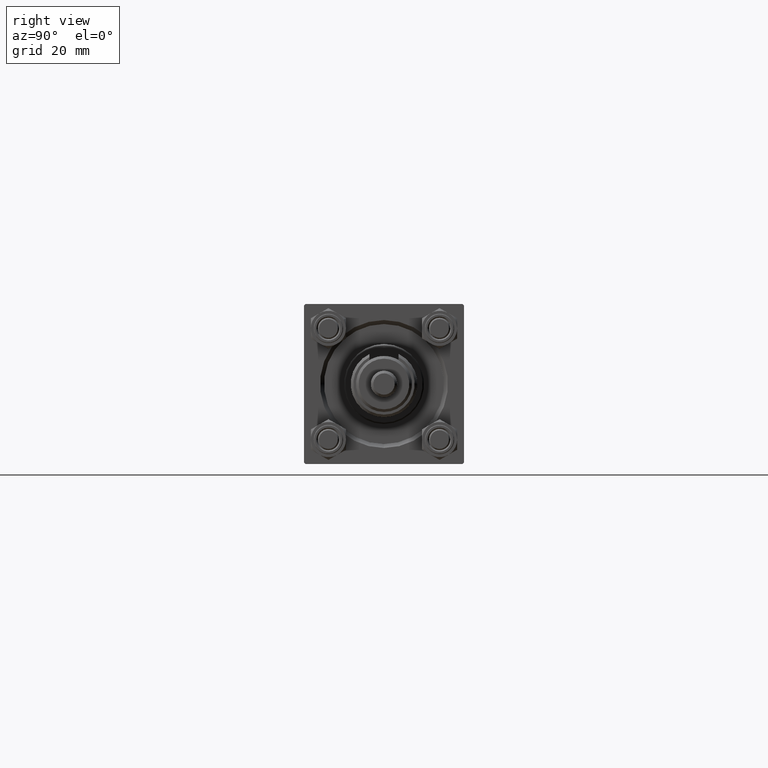
[diagram: clean part render]
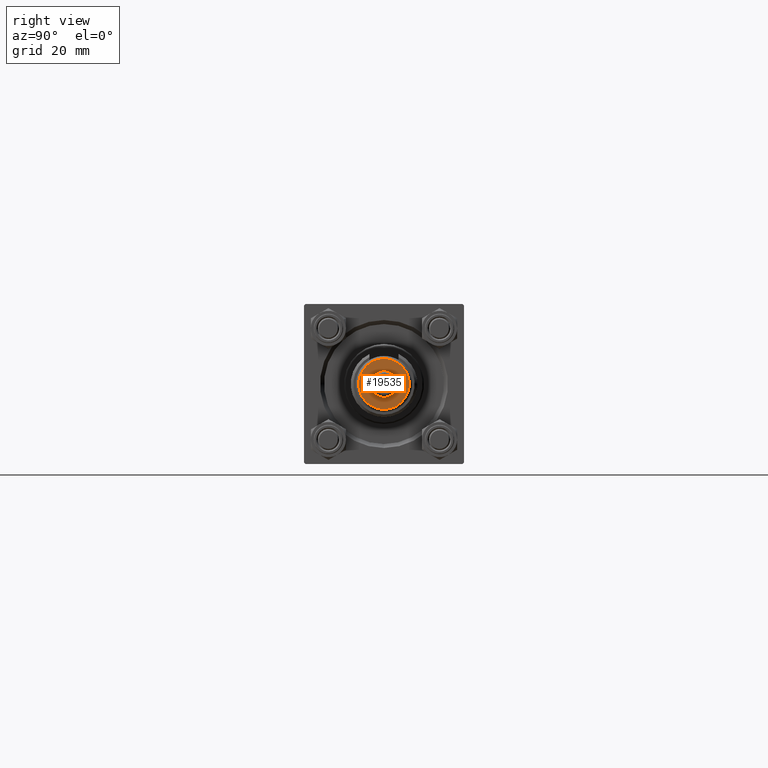
[diagram: same view with one face highlighted and labeled with its STEP entity id]
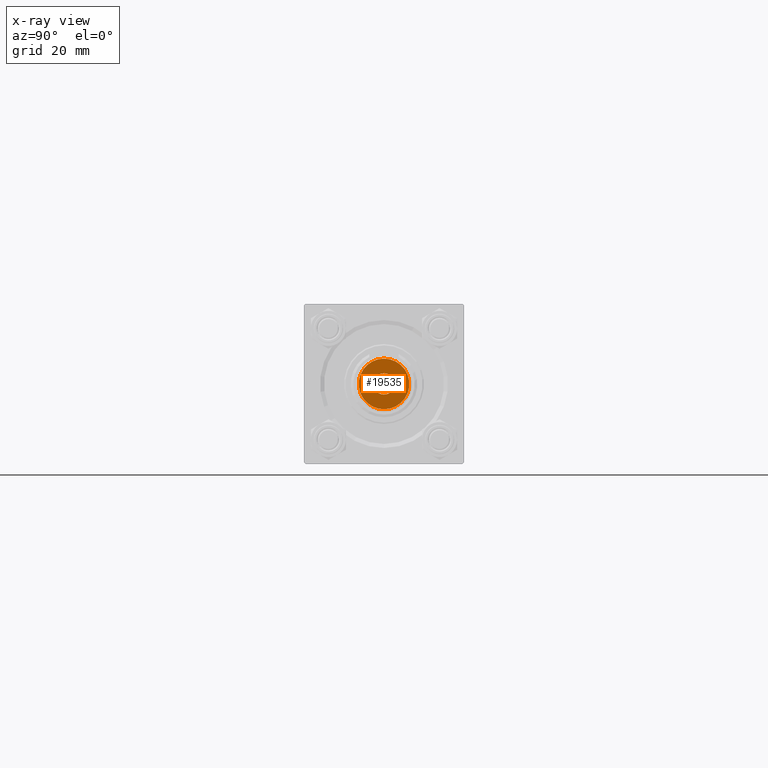
[diagram: x-ray of the same camera — body ghosted, the highlighted face saturated]
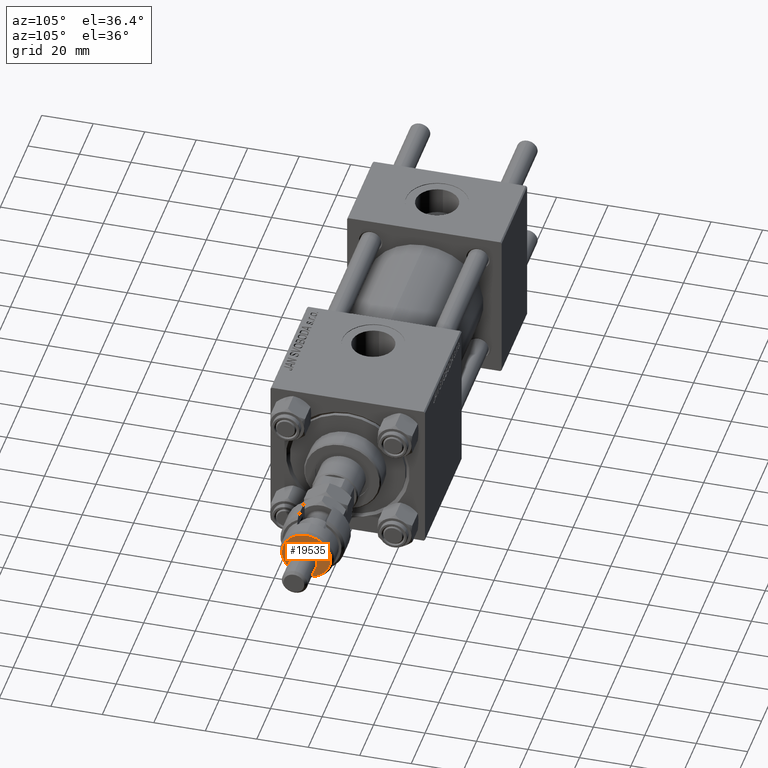
[diagram: same view with one face highlighted and labeled with its STEP entity id]
A machine part, right view. The second image highlights one B-rep face of the part: STEP entity #19535.
The next image is the same camera in x-ray: the body ghosted, the highlighted face saturated — about 0% of this face is hidden behind the body in this view.
A second angle (auxiliary view) of the same face is appended — the face is thin or edge-on in the first view.
In plain terms, the highlighted planar face has unit normal (1, 0, -0).
Its self-contained STEP definition (entity closure, byte-faithful):
#1833 = EDGE_CURVE ( 'NONE', #43646, #45338, #7498, .T. ) ;
#6333 = EDGE_CURVE ( 'NONE', #39837, #8852, #42433, .T. ) ;
#6975 = CARTESIAN_POINT ( 'NONE',  ( -9.500000000000001776, 0.000000000000000000, 19.00000000000000000 ) ) ;
#7498 = CIRCLE ( 'NONE', #46650, 4.000000000000000000 ) ;
#7903 = ORIENTED_EDGE ( 'NONE', *, *, #1833, .F. ) ;
#8852 = VERTEX_POINT ( 'NONE', #6975 ) ;
#9833 = CIRCLE ( 'NONE', #39618, 4.000000000000000000 ) ;
#10073 = PLANE ( 'NONE',  #13886 ) ;
#10136 = ORIENTED_EDGE ( 'NONE', *, *, #31139, .F. ) ;
#10667 = DIRECTION ( 'NONE',  ( 1.000000000000000000, 0.000000000000000000, 0.000000000000000000 ) ) ;
#13802 = DIRECTION ( 'NONE',  ( 0.000000000000000000, 0.000000000000000000, 1.000000000000000000 ) ) ;
#13886 = AXIS2_PLACEMENT_3D ( 'NONE', #35092, #13802, #30038 ) ;
#14606 = FACE_OUTER_BOUND ( 'NONE', #42210, .T. ) ;
#15754 = CARTESIAN_POINT ( 'NONE',  ( -4.000000000000000000, 0.000000000000000000, 19.00000000000000000 ) ) ;
#16520 = CARTESIAN_POINT ( 'NONE',  ( 0.000000000000000000, 0.000000000000000000, 19.00000000000000000 ) ) ;
#16892 = AXIS2_PLACEMENT_3D ( 'NONE', #16520, #40768, #37026 ) ;
#17860 = DIRECTION ( 'NONE',  ( 0.000000000000000000, 0.000000000000000000, 1.000000000000000000 ) ) ;
#19535 = ADVANCED_FACE ( 'NONE', ( #14606, #22329 ), #10073, .T. ) ;
#19975 = AXIS2_PLACEMENT_3D ( 'NONE', #42481, #38748, #29929 ) ;
#21848 = CARTESIAN_POINT ( 'NONE',  ( 0.000000000000000000, 0.000000000000000000, 19.00000000000000000 ) ) ;
#22329 = FACE_BOUND ( 'NONE', #31436, .T. ) ;
#27373 = ORIENTED_EDGE ( 'NONE', *, *, #6333, .T. ) ;
#29929 = DIRECTION ( 'NONE',  ( 1.000000000000000000, 0.000000000000000000, 0.000000000000000000 ) ) ;
#30032 = CARTESIAN_POINT ( 'NONE',  ( 0.000000000000000000, 0.000000000000000000, 19.00000000000000000 ) ) ;
#30038 = DIRECTION ( 'NONE',  ( 1.000000000000000000, 0.000000000000000000, -0.000000000000000000 ) ) ;
#31139 = EDGE_CURVE ( 'NONE', #45338, #43646, #9833, .T. ) ;
#31436 = EDGE_LOOP ( 'NONE', ( #7903, #10136 ) ) ;
#32422 = EDGE_CURVE ( 'NONE', #8852, #39837, #48890, .T. ) ;
#35092 = CARTESIAN_POINT ( 'NONE',  ( 0.000000000000000000, 0.000000000000000000, 19.00000000000000000 ) ) ;
#36540 = CARTESIAN_POINT ( 'NONE',  ( 9.500000000000001776, 1.224646799147353256E-15, 19.00000000000000000 ) ) ;
#37026 = DIRECTION ( 'NONE',  ( 1.000000000000000000, 0.000000000000000000, 0.000000000000000000 ) ) ;
#38748 = DIRECTION ( 'NONE',  ( 0.000000000000000000, 0.000000000000000000, 1.000000000000000000 ) ) ;
#39618 = AXIS2_PLACEMENT_3D ( 'NONE', #21848, #17860, #10667 ) ;
#39837 = VERTEX_POINT ( 'NONE', #36540 ) ;
#40768 = DIRECTION ( 'NONE',  ( 0.000000000000000000, 0.000000000000000000, 1.000000000000000000 ) ) ;
#42210 = EDGE_LOOP ( 'NONE', ( #48055, #27373 ) ) ;
#42433 = CIRCLE ( 'NONE', #16892, 9.500000000000001776 ) ;
#42481 = CARTESIAN_POINT ( 'NONE',  ( 0.000000000000000000, 0.000000000000000000, 19.00000000000000000 ) ) ;
#43113 = DIRECTION ( 'NONE',  ( 0.000000000000000000, 0.000000000000000000, 1.000000000000000000 ) ) ;
#43646 = VERTEX_POINT ( 'NONE', #15754 ) ;
#45338 = VERTEX_POINT ( 'NONE', #49025 ) ;
#46030 = DIRECTION ( 'NONE',  ( 1.000000000000000000, 0.000000000000000000, 0.000000000000000000 ) ) ;
#46650 = AXIS2_PLACEMENT_3D ( 'NONE', #30032, #43113, #46030 ) ;
#48055 = ORIENTED_EDGE ( 'NONE', *, *, #32422, .T. ) ;
#48890 = CIRCLE ( 'NONE', #19975, 9.500000000000001776 ) ;
#49025 = CARTESIAN_POINT ( 'NONE',  ( 4.000000000000000000, 4.898587196589412829E-16, 19.00000000000000000 ) ) ;